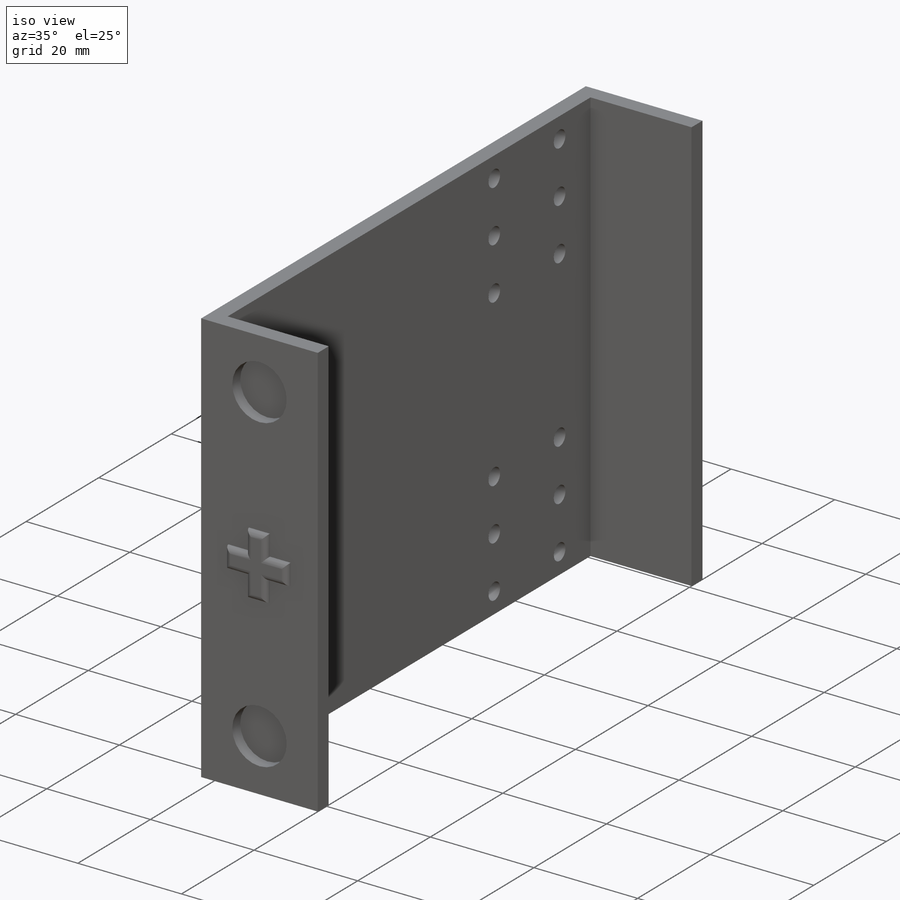
[diagram: iso view]
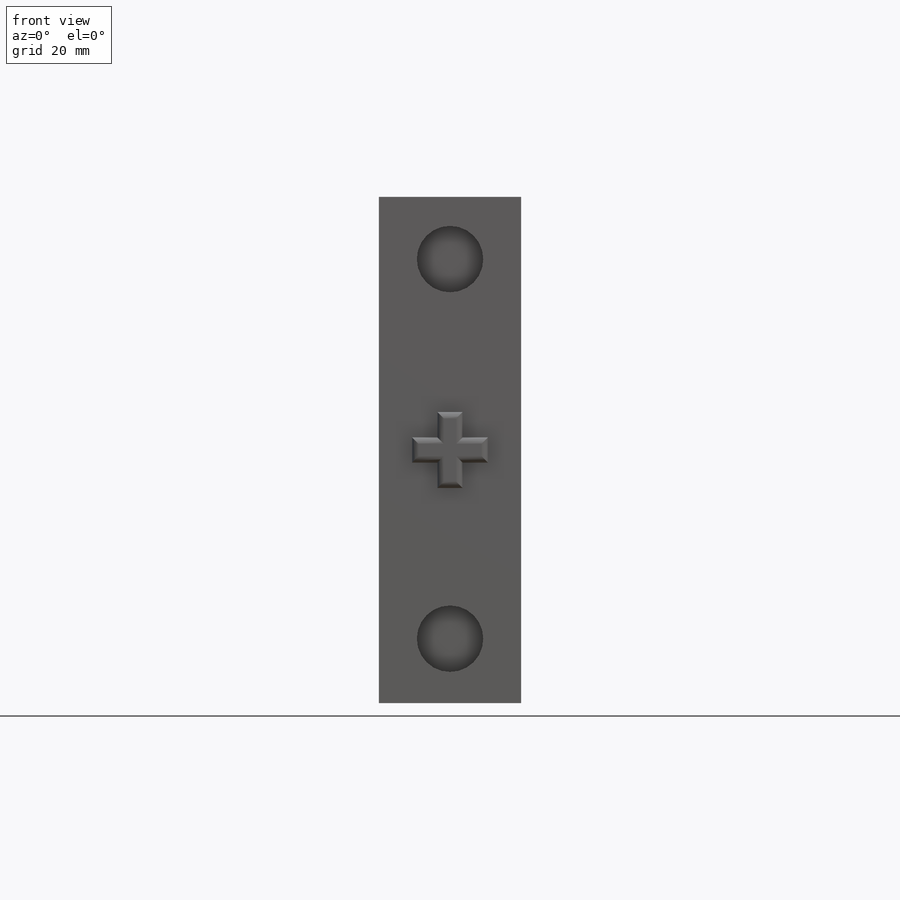
[diagram: front view]
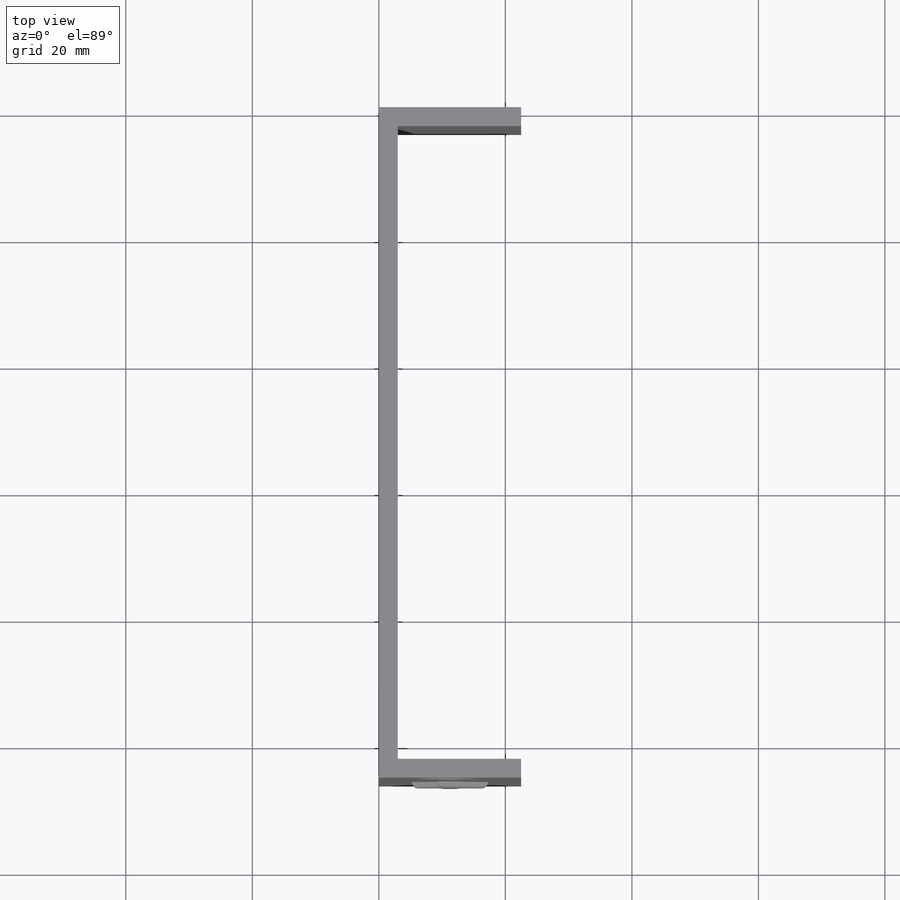
[diagram: top view]
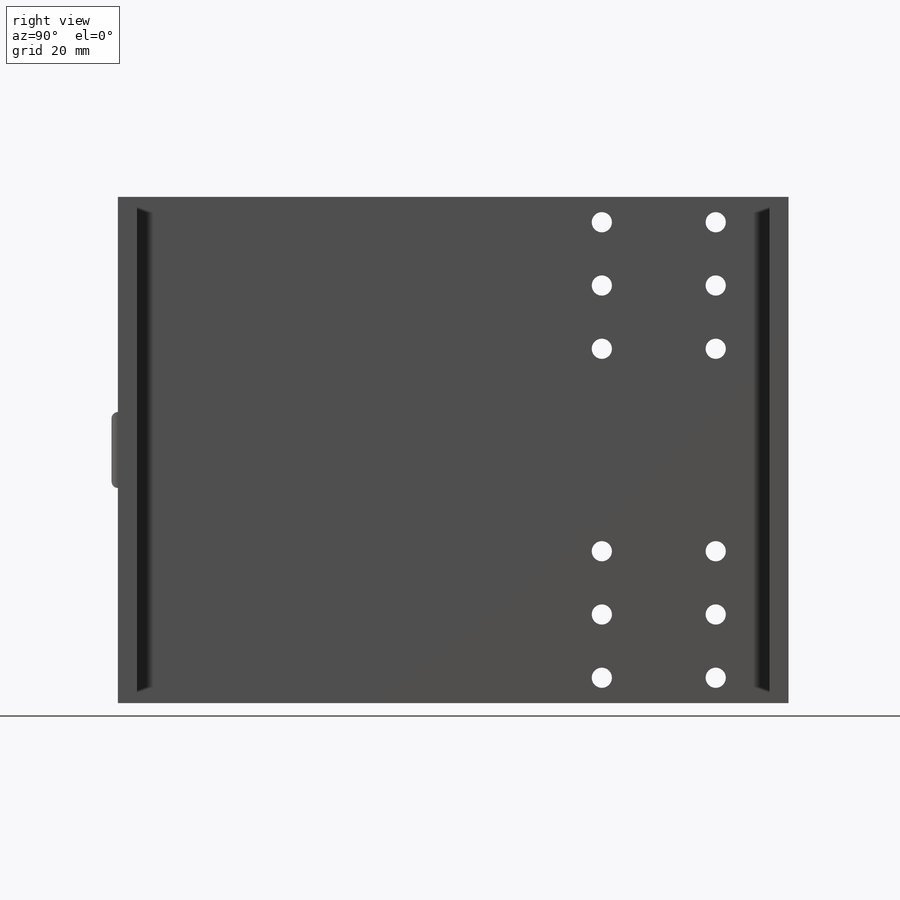
[diagram: right view]
SOLIDWORKS PART (.sldprt)
format: sldprt  version: not decoded by parser v0  size: 440,832 bytes
history: native  units: mm
features: sketch x8, extrude x4, cut_extrude x4, plane x3, material x1, fillet x1 (+10 scaffold rows collapsed)
feature tree (31):
  scaffold x10  (default folders/planes/origin — collapsed)
  material  "Matériau <non spécifié>"
  plane  "Plan de face"
  plane  "Plan de dessus"
  plane  "Plan de droite"
  sketch  "Esquisse1"  dims[D1=22.5mm D2=80.0mm]
  extrude  "Boss.-Extru.1"  Depth=3mm
  sketch  "Esquisse2"  dims[D1=3.0mm]
  extrude  "Boss.-Extru.2"  Depth=111.5mm
  sketch  "Esquisse3"  dims[D1=0.0mm D2=25.0mm]
  extrude  "Boss.-Extru.3"  Depth=3mm
  sketch  "Esquisse4"  dims[D1=10.5mm D2=10.5mm D3=10.15mm D4=60.0mm D5=11.25mm D6=11.25mm]
  cut_extrude  "Enlèv. mat.-Extru.1"  Depth=2.2mm
  sketch  "Esquisse5"  dims[c1.D1=1.1mm c1.D2=4.7mm c1.D3=4.7mm c1.D4=4.5mm c1.D5=3.0mm c1.D6=3.0mm c1.D7=8.1mm c1.D8=8.1mm c1.D9=3.0mm c1.D10=3.0mm c2.D1=40.0mm c2.D2=40.0mm c2.D3=11.25mm c2.D4=2.25mm c2.D5=2.25mm c2.D6=4.5mm c2.D7=4.5mm c2.D8=4.5mm c2.D9=4.5mm c2.D10=4.5mm c2.D11=4.5mm c2.D12=4.5mm c2.D13=4.5mm c2.D14=4.5mm c2.D15=4.5mm c2.D16=4.5mm c2.D17=2.375mm]
  cut_extrude  "Enlèv. mat.-Extru.2"  Depth=1.2mm
  sketch  "Esquisse6"  dims[D1=10.5mm D4=10.5mm D2=11.25mm D3=10.15mm D5=60.0mm D6=11.25mm]
  cut_extrude  "Enlèv. mat.-Extru.3"  Depth=2.2mm
  sketch  "Esquisse7"  dims[c1.D1=1.5mm c1.D2=3.0mm c2.D1=11.25mm c2.D2=40.0mm c2.D3=40.0mm c2.D4=4.0mm c2.D5=4.0mm c2.D6=4.0mm c2.D7=4.0mm c2.D8=2.0mm c2.D9=2.0mm c2.D10=4.0mm c2.D11=4.0mm c2.D12=4.0mm c2.D13=4.0mm c2.D14=4.0mm c2.D15=4.0mm c2.D16=2.0mm]
  extrude  "Boss.-Extru.4"  Depth=1mm
  sketch  "Esquisse8"  dims[D2=3.2mm D6=3.2mm D9=3.2mm D10=3.2mm D11=3.2mm D12=3.2mm D19=3.2mm D20=3.2mm D21=3.2mm D22=3.2mm D23=3.2mm D24=3.2mm D36=3.2mm D37=3.2mm D38=3.2mm D39=3.2mm D40=3.2mm D41=3.2mm D42=3.2mm D43=3.2mm D1=35.1mm D3=4.0mm D4=35.1mm D5=10.0mm D7=35.1mm D8=10.0mm D13=10.0mm D14=10.0mm D15=4.0mm D16=17.1mm D17=17.1mm D18=17.1mm D25=17.1mm D26=17.1mm D27=17.1mm D28=35.1mm D29=35.1mm D30=35.1mm D31=4.0mm D32=10.0mm 10=10.0mm D33=10.0mm D34=10.0mm D35=4.0mm D44=10.0mm D45=10.0mm D46=10.0mm D47=10.0mm D48=83.1mm D49=18.0mm D50=18.0mm D51=18.0mm D52=83.1mm D53=83.1mm D54=4.0mm D55=4.0mm D56=4.0mm D57=4.0mm]
  cut_extrude  "Enlèv. mat.-Extru.4"  Depth=4mm
  fillet  "Congé2"  Radius=1mm
decode coverage: 17 of 17 modeling features carry decoded parameters
note: suppression state not decoded; provenance and decode notes live in map.json
